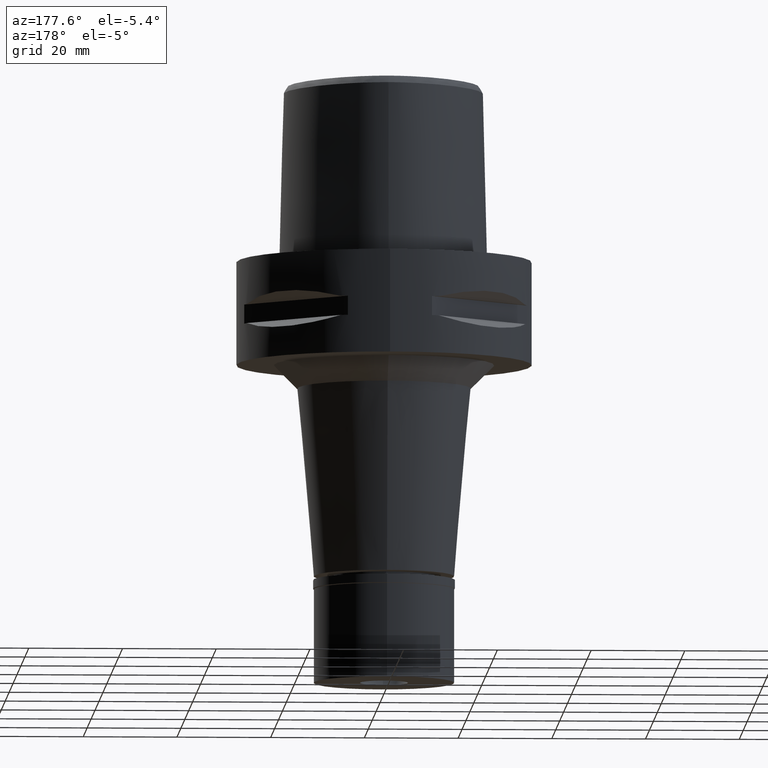
[diagram: clean part render]
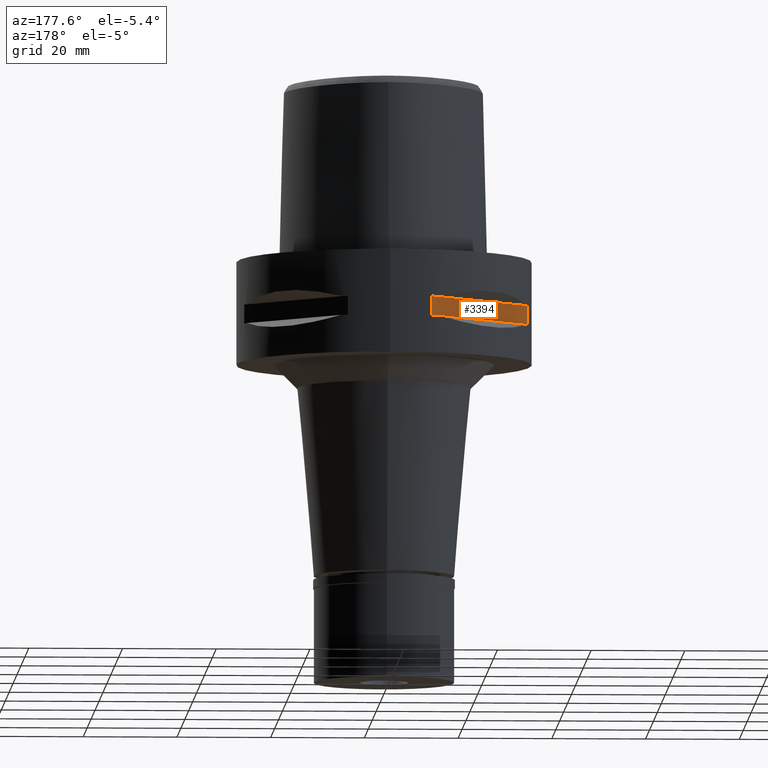
[diagram: same view with one face highlighted and labeled with its STEP entity id]
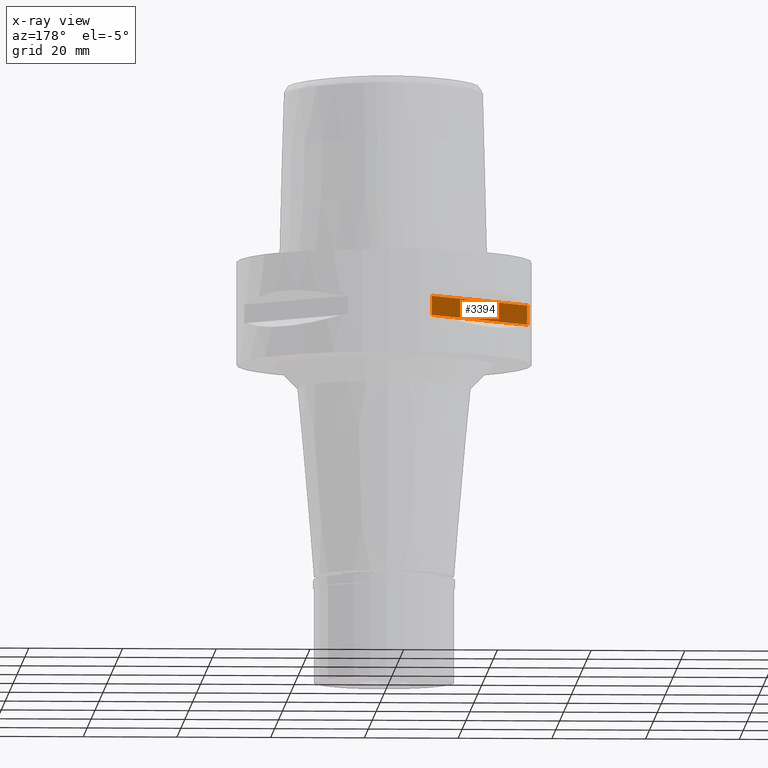
[diagram: x-ray of the same camera — body ghosted, the highlighted face saturated]
A machine part, auxiliary view. The second image highlights one B-rep face of the part: STEP entity #3394.
The next image is the same camera in x-ray: the body ghosted, the highlighted face saturated — about 0% of this face is hidden behind the body in this view.
In plain terms, the highlighted planar face has unit normal (0.7071, -0.7071, 0).
Its self-contained STEP definition (entity closure, byte-faithful):
#19 = EDGE_CURVE ( 'NONE', #4847, #4165, #1739, .T. ) ;
#297 = FACE_OUTER_BOUND ( 'NONE', #2897, .T. ) ;
#339 = ORIENTED_EDGE ( 'NONE', *, *, #4793, .T. ) ;
#348 = CARTESIAN_POINT ( 'NONE',  ( -8.981198972017999438, 30.19251670572000279, -9.950000000000001066 ) ) ;
#764 = VECTOR ( 'NONE', #1355, 1000.000000000000114 ) ;
#846 = VERTEX_POINT ( 'NONE', #4691 ) ;
#850 = DIRECTION ( 'NONE',  ( 0.0000000000000000000, 0.0000000000000000000, -1.000000000000000000 ) ) ;
#1117 = DIRECTION ( 'NONE',  ( 0.0000000000000000000, 0.0000000000000000000, -1.000000000000000000 ) ) ;
#1130 = ORIENTED_EDGE ( 'NONE', *, *, #19, .T. ) ;
#1261 = VERTEX_POINT ( 'NONE', #3886 ) ;
#1326 = CARTESIAN_POINT ( 'NONE',  ( -8.981198972017999438, 30.19251670572000279, -14.05000000000000071 ) ) ;
#1355 = DIRECTION ( 'NONE',  ( -0.7071067811865474617, -0.7071067811865474617, 0.0000000000000000000 ) ) ;
#1428 = VECTOR ( 'NONE', #850, 1000.000000000000000 ) ;
#1447 = CARTESIAN_POINT ( 'NONE',  ( -33.72899346260000186, 5.444722215136000187, -9.950000000000001066 ) ) ;
#1739 = LINE ( 'NONE', #3645, #2213 ) ;
#2191 = DIRECTION ( 'NONE',  ( -0.7071067811865474617, -0.7071067811865474617, 0.0000000000000000000 ) ) ;
#2213 = VECTOR ( 'NONE', #3215, 1000.000000000000000 ) ;
#2481 = AXIS2_PLACEMENT_3D ( 'NONE', #1447, #3001, #1117 ) ;
#2587 = EDGE_CURVE ( 'NONE', #846, #4847, #4758, .T. ) ;
#2700 = EDGE_CURVE ( 'NONE', #1261, #4165, #3817, .T. ) ;
#2832 = CARTESIAN_POINT ( 'NONE',  ( -30.19251670572000279, 8.981198972019999616, -14.05000000000000071 ) ) ;
#2897 = EDGE_LOOP ( 'NONE', ( #3436, #339, #2918, #1130 ) ) ;
#2909 = CARTESIAN_POINT ( 'NONE',  ( -30.19251670572000279, 8.981198972017999438, -9.950000000000001066 ) ) ;
#2918 = ORIENTED_EDGE ( 'NONE', *, *, #2587, .T. ) ;
#3001 = DIRECTION ( 'NONE',  ( 0.7071067811865475727, -0.7071067811865475727, 0.0000000000000000000 ) ) ;
#3215 = DIRECTION ( 'NONE',  ( 0.0000000000000000000, 0.0000000000000000000, 1.000000000000000000 ) ) ;
#3333 = PLANE ( 'NONE',  #2481 ) ;
#3394 = ADVANCED_FACE ( 'NONE', ( #297 ), #3333, .F. ) ;
#3436 = ORIENTED_EDGE ( 'NONE', *, *, #2700, .F. ) ;
#3645 = CARTESIAN_POINT ( 'NONE',  ( -30.19251670572000279, 8.981198972017999438, -14.05000000000000071 ) ) ;
#3817 = LINE ( 'NONE', #348, #4501 ) ;
#3886 = CARTESIAN_POINT ( 'NONE',  ( -8.981198972019999616, 30.19251670572000279, -9.950000000000001066 ) ) ;
#3956 = CARTESIAN_POINT ( 'NONE',  ( -8.981198972017999438, 30.19251670572000279, -9.950000000000001066 ) ) ;
#4165 = VERTEX_POINT ( 'NONE', #2909 ) ;
#4324 = LINE ( 'NONE', #3956, #1428 ) ;
#4501 = VECTOR ( 'NONE', #2191, 1000.000000000000114 ) ;
#4691 = CARTESIAN_POINT ( 'NONE',  ( -8.981198972017999438, 30.19251670572000279, -14.05000000000000071 ) ) ;
#4758 = LINE ( 'NONE', #1326, #764 ) ;
#4793 = EDGE_CURVE ( 'NONE', #1261, #846, #4324, .T. ) ;
#4847 = VERTEX_POINT ( 'NONE', #2832 ) ;